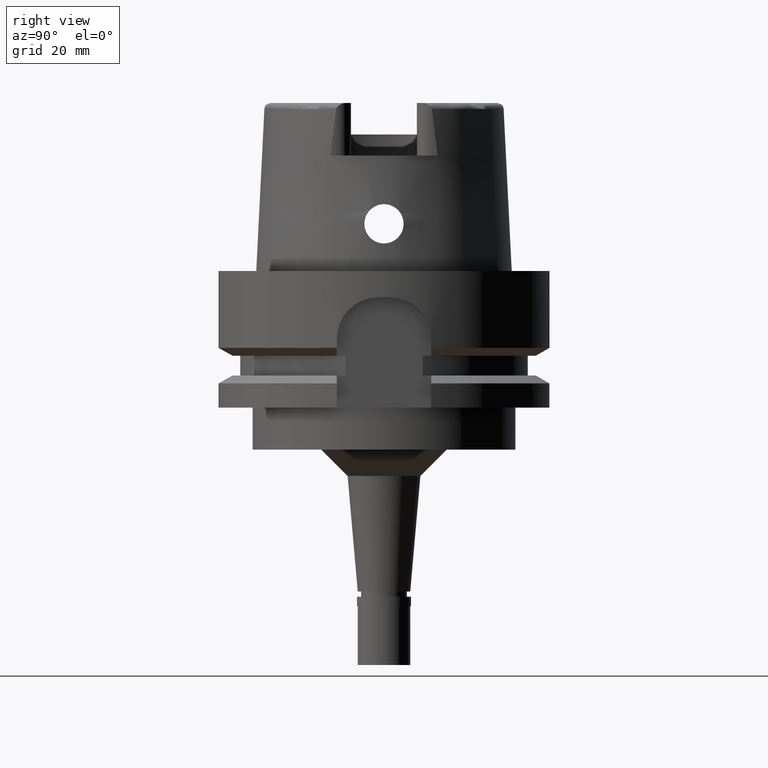
[diagram: clean part render]
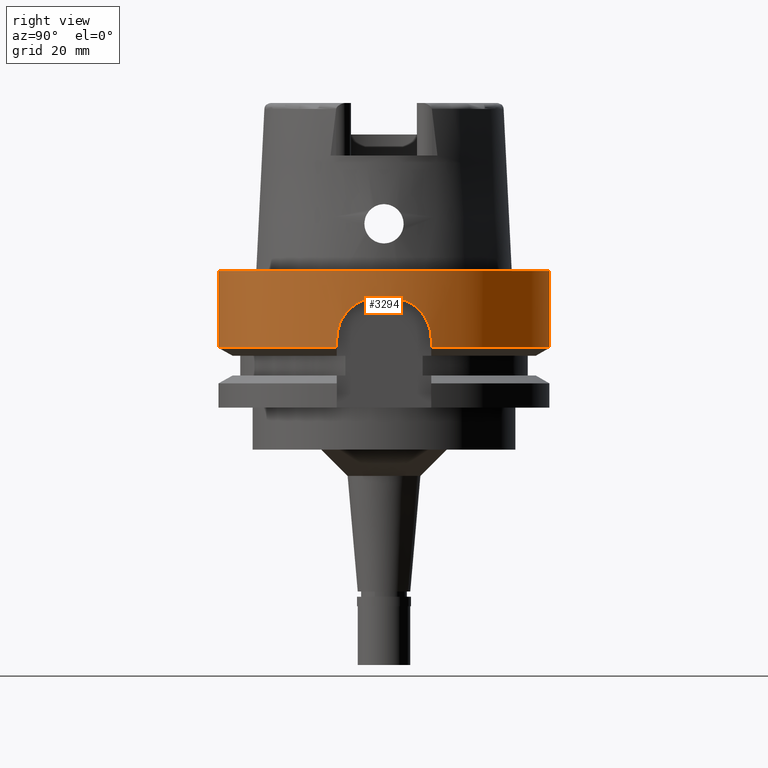
[diagram: same view with one face highlighted and labeled with its STEP entity id]
A machine part, right view. The second image highlights one B-rep face of the part: STEP entity #3294.
In plain terms, the highlighted cylindrical surface (partial cylindrical patch) has radius 31.5 mm, axis along (0, 0, -1).
Its self-contained STEP definition (entity closure, byte-faithful):
#18 = CARTESIAN_POINT ( 'NONE',  ( 30.97763310884194254, -5.714777636177593045, -6.531627579102213588 ) ) ;
#26 = VERTEX_POINT ( 'NONE', #1497 ) ;
#34 = EDGE_CURVE ( 'NONE', #2306, #26, #3304, .T. ) ;
#52 = CARTESIAN_POINT ( 'NONE',  ( 30.97106086035142880, 5.747260774509252990, -6.560049650016892109 ) ) ;
#76 = CARTESIAN_POINT ( 'NONE',  ( 30.78200704049287495, 6.687157135346112113, -7.373608385579289326 ) ) ;
#103 = CARTESIAN_POINT ( 'NONE',  ( 30.61213634656350990, 7.428749923940136668, -8.231412724895182720 ) ) ;
#134 = CARTESIAN_POINT ( 'NONE',  ( 31.02066603833974057, 5.474329072356688641, -6.368229471706310818 ) ) ;
#162 = CARTESIAN_POINT ( 'NONE',  ( 31.22918764763412369, 4.121686750512085773, -5.634169962627909811 ) ) ;
#197 = CARTESIAN_POINT ( 'NONE',  ( 30.55749398380241999, -7.647847164676893961, -8.549590074621910674 ) ) ;
#206 = EDGE_CURVE ( 'NONE', #1619, #1654, #1673, .T. ) ;
#209 = DIRECTION ( 'NONE',  ( 0.0000000000000000000, 0.0000000000000000000, -1.000000000000000000 ) ) ;
#289 = CARTESIAN_POINT ( 'NONE',  ( 30.69448692141792634, -7.081002528621201719, -7.795180697695104577 ) ) ;
#325 = EDGE_CURVE ( 'NONE', #1619, #4083, #2148, .T. ) ;
#341 = CARTESIAN_POINT ( 'NONE',  ( 31.10830744538590054, -4.953066644803116425, -6.043514509543841839 ) ) ;
#409 = ORIENTED_EDGE ( 'NONE', *, *, #485, .T. ) ;
#425 = CARTESIAN_POINT ( 'NONE',  ( 31.31585705825435539, -3.400706057007036431, -5.367532984533865736 ) ) ;
#452 = CARTESIAN_POINT ( 'NONE',  ( 31.00741827446740828, -5.550091455309537736, -6.418563727518218798 ) ) ;
#479 = CARTESIAN_POINT ( 'NONE',  ( 30.78140838282128655, 6.689911912030714447, -7.376395453845811190 ) ) ;
#485 = EDGE_CURVE ( 'NONE', #5075, #2306, #1848, .T. ) ;
#489 = AXIS2_PLACEMENT_3D ( 'NONE', #1460, #209, #3133 ) ;
#504 = CARTESIAN_POINT ( 'NONE',  ( 31.23435063214255791, 4.082333884453222872, -5.617636282296331274 ) ) ;
#518 = EDGE_CURVE ( 'NONE', #4400, #5075, #2943, .T. ) ;
#526 = DIRECTION ( 'NONE',  ( 0.0000000000000000000, 0.0000000000000000000, 1.000000000000000000 ) ) ;
#529 = CARTESIAN_POINT ( 'NONE',  ( 30.51787830698517112, 7.804718180920668047, -8.792331262665541658 ) ) ;
#552 = CARTESIAN_POINT ( 'NONE',  ( 30.35609876729461121, 8.411739697505197455, -9.988964142694317871 ) ) ;
#572 = AXIS2_PLACEMENT_3D ( 'NONE', #5359, #526, #2798 ) ;
#582 = CARTESIAN_POINT ( 'NONE',  ( 31.19830764899499087, 4.349374766136103965, -5.734631626794189252 ) ) ;
#588 = CARTESIAN_POINT ( 'NONE',  ( 30.79300844975934126, -6.636315667564042009, -7.322668735396074879 ) ) ;
#615 = CARTESIAN_POINT ( 'NONE',  ( 30.36366154914085058, -8.384389370009802889, -9.922497703909229472 ) ) ;
#727 = CARTESIAN_POINT ( 'NONE',  ( 30.18691769625000276, 9.000000000000000000, -13.00000000000000000 ) ) ;
#768 = CARTESIAN_POINT ( 'NONE',  ( 30.18691769624999921, 9.000000000000003553, -12.50993811617114382 ) ) ;
#787 = CARTESIAN_POINT ( 'NONE',  ( 31.03198899661399324, -5.409777652475012744, -6.325121157137686190 ) ) ;
#867 = B_SPLINE_CURVE_WITH_KNOTS ( 'NONE', 3,
 ( #3839, #768, #2960, #4908, #2689, #2664, #1834, #984, #1418, #3089, #2241, #552, #3573, #3114, #2635, #3143, #2718, #529, #1011, #928, #3995, #3176, #2214, #2266, #4445, #103, #4423, #5363, #1885, #905, #3630, #3971, #3949, #2292, #479, #76, #5308, #4023, #4823, #52, #2749, #5281, #1807, #4479, #4370, #5337, #4398, #134, #4880, #2319, #1859, #3603, #4048, #1446, #582, #3543, #1388, #162, #3066, #4803, #504, #1782, #4855, #3519, #5255, #957 ),
 .UNSPECIFIED., .F., .F.,
 ( 4, 2, 2, 1, 1, 1, 2, 2, 2, 2, 1, 1, 1, 1, 2, 2, 2, 2, 1, 1, 1, 1, 2, 2, 2, 2, 2, 1, 1, 1, 1, 2, 2, 2, 2, 1, 1, 1, 2, 2, 2, 4 ),
 ( 0.0000000000000000000, 0.1250000000000475175, 0.1875000000000712763, 0.2187500000000833500, 0.2343750000000894007, 0.2421875000000923706, 0.2460937500000938138, 0.2500000000000952016, 0.3125000000001235678, 0.3437500000001376121, 0.3593750000001445510, 0.3671875000001482148, 0.3710937500001499356, 0.3730468750001508793, 0.3740234375001513234, 0.3750000000001518230, 0.4375000000001639244, 0.4687500000001699196, 0.4843750000001728617, 0.4921875000001741940, 0.4960937500001748601, 0.4980468750001752487, 0.4990234375001754152, 0.5000000000001756373, 0.5625000000001917355, 0.5937500000001997291, 0.6093750000002036149, 0.6171875000002057243, 0.6210937500002067235, 0.6230468750002070566, 0.6240234375002073897, 0.6245117187502070566, 0.6250000000002068345, 0.6875000000001724176, 0.7187500000001553202, 0.7343750000001466605, 0.7421875000001423306, 0.7460937500001402212, 0.7480468750001391109, 0.7500000000001381117, 0.8750000000000690559, 1.000000000000000000 ),
 .UNSPECIFIED. ) ;
#876 = CARTESIAN_POINT ( 'NONE',  ( 30.85865826102990894, -6.323320754549815348, -7.027656642141083765 ) ) ;
#879 = CARTESIAN_POINT ( 'NONE',  ( 0.0000000000000000000, -31.50000000000000000, -14.62250092523999889 ) ) ;
#905 = CARTESIAN_POINT ( 'NONE',  ( 30.74070199618342158, 6.875140362829847973, -7.569230666642643435 ) ) ;
#928 = CARTESIAN_POINT ( 'NONE',  ( 30.54322342631781240, 7.704674039206267366, -8.635609545603465165 ) ) ;
#957 = CARTESIAN_POINT ( 'NONE',  ( 31.48412298285999711, 1.000000000000000000, -5.000000000000000000 ) ) ;
#984 = CARTESIAN_POINT ( 'NONE',  ( 30.33353712678211522, 8.493000123904753451, -10.19590533102322105 ) ) ;
#1010 = VECTOR ( 'NONE', #3288, 1000.000000000000000 ) ;
#1011 = CARTESIAN_POINT ( 'NONE',  ( 30.53467374995793193, 7.738549694288836989, -8.687905603266376175 ) ) ;
#1026 = CARTESIAN_POINT ( 'NONE',  ( 0.0000000000000000000, -31.50000000000000000, 1.894780628694000185E-14 ) ) ;
#1076 = CARTESIAN_POINT ( 'NONE',  ( 30.63637741721085206, -7.326799604757705531, -8.102164693262594142 ) ) ;
#1107 = CARTESIAN_POINT ( 'NONE',  ( 30.36230289799670956, -8.389310405891581723, -9.934321230903961464 ) ) ;
#1128 = AXIS2_PLACEMENT_3D ( 'NONE', #4594, #1586, #1973 ) ;
#1142 = CARTESIAN_POINT ( 'NONE',  ( 30.36687230965131334, -8.372751649775537430, -9.894720646851576262 ) ) ;
#1194 = CARTESIAN_POINT ( 'NONE',  ( 31.24058206343736188, -4.034358361708803464, -5.597789328618944182 ) ) ;
#1338 = ORIENTED_EDGE ( 'NONE', *, *, #5035, .F. ) ;
#1388 = CARTESIAN_POINT ( 'NONE',  ( 31.22287107269856676, 4.169376715800767741, -5.654484666988873087 ) ) ;
#1412 = VECTOR ( 'NONE', #5386, 1000.000000000000114 ) ;
#1418 = CARTESIAN_POINT ( 'NONE',  ( 30.34540340745634879, 8.450320568088402595, -10.08542724235362265 ) ) ;
#1446 = CARTESIAN_POINT ( 'NONE',  ( 31.17435895255750111, 4.518657888857705807, -5.814277882438436684 ) ) ;
#1456 = VERTEX_POINT ( 'NONE', #5356 ) ;
#1460 = CARTESIAN_POINT ( 'NONE',  ( 0.0000000000000000000, 1.679786782049999636E-14, 2.842170943039999687E-14 ) ) ;
#1486 = VECTOR ( 'NONE', #3619, 1000.000000000000000 ) ;
#1497 = CARTESIAN_POINT ( 'NONE',  ( 30.18691748910999806, -9.000000694753000019, -14.62249532151999887 ) ) ;
#1498 = B_SPLINE_CURVE_WITH_KNOTS ( 'NONE', 3,
 ( #2133, #1648, #5605, #1700, #4316, #425, #2156, #2521, #4257, #1621, #3350, #5085, #1194, #2927, #2497, #4231, #341, #5550, #2956, #5115, #4685, #787, #3835, #4341, #2184, #3917, #452, #18, #1756, #5228, #876, #3039, #3491, #4773, #2609, #5496, #588, #1954, #4180, #289, #1076, #4970, #2445, #4089, #1601, #4485, #2385, #3329, #1508, #197, #4119, #3267, #1922, #5430, #3241, #2811, #4542, #1142, #615, #1107, #5030, #4998, #2782 ),
 .UNSPECIFIED., .F., .F.,
 ( 4, 2, 2, 1, 1, 1, 1, 2, 2, 2, 2, 1, 1, 1, 1, 1, 2, 2, 2, 2, 2, 1, 1, 2, 2, 2, 2, 1, 1, 1, 1, 2, 2, 2, 2, 1, 1, 2, 2, 4 ),
 ( 0.0000000000000000000, 0.1250000000000509592, 0.1875000000000763833, 0.2187500000000890676, 0.2343750000000953404, 0.2421875000000983658, 0.2460937500000998368, 0.2480468750001005029, 0.2500000000001011968, 0.3125000000001199041, 0.3437500000001292855, 0.3593750000001340039, 0.3671875000001362799, 0.3710937500001372236, 0.3730468750001376121, 0.3740234375001377232, 0.3745117187501377787, 0.3750000000001378897, 0.4375000000001157408, 0.4687500000001046385, 0.4843750000000989764, 0.4921875000000960898, 0.4960937500000945910, 0.4980468750000939249, 0.5000000000000931477, 0.5625000000000706102, 0.5937500000000595080, 0.6093750000000542899, 0.6171875000000515143, 0.6210937500000502931, 0.6230468750000495159, 0.6240234375000490719, 0.6250000000000487388, 0.6875000000000375255, 0.7187500000000321965, 0.7343750000000298650, 0.7421875000000286438, 0.7460937500000280886, 0.7500000000000274225, 1.000000000000000000 ),
 .UNSPECIFIED. ) ;
#1508 = CARTESIAN_POINT ( 'NONE',  ( 30.55771606880398394, -7.646959450479345222, -8.548265564438160879 ) ) ;
#1560 = CARTESIAN_POINT ( 'NONE',  ( 0.0000000000000000000, 31.50000000000000000, 1.894780628694000185E-14 ) ) ;
#1573 = EDGE_CURVE ( 'NONE', #2430, #26, #1906, .T. ) ;
#1586 = DIRECTION ( 'NONE',  ( 0.0000000000000000000, 0.0000000000000000000, 1.000000000000000000 ) ) ;
#1601 = CARTESIAN_POINT ( 'NONE',  ( 30.56907325350039173, -7.601491753732292800, -8.480991841340038917 ) ) ;
#1619 = VERTEX_POINT ( 'NONE', #2855 ) ;
#1621 = CARTESIAN_POINT ( 'NONE',  ( 31.24687938001116194, -3.985291265427700846, -5.577833576225794232 ) ) ;
#1648 = CARTESIAN_POINT ( 'NONE',  ( 31.46861672679811406, -1.488200872937652131, -4.999999999999998224 ) ) ;
#1654 = VERTEX_POINT ( 'NONE', #4325 ) ;
#1673 = CIRCLE ( 'NONE', #1128, 31.49999999999999645 ) ;
#1675 = DIRECTION ( 'NONE',  ( 0.0000000000000000000, 0.0000000000000000000, 1.000000000000000000 ) ) ;
#1700 = CARTESIAN_POINT ( 'NONE',  ( 31.37939177554384429, -2.758543164314120499, -5.191344037738300443 ) ) ;
#1722 = DIRECTION ( 'NONE',  ( 0.0000000000000000000, -1.000000000000000000, 0.0000000000000000000 ) ) ;
#1756 = CARTESIAN_POINT ( 'NONE',  ( 30.91812910346694565, -6.025333896209974505, -6.773985085537381323 ) ) ;
#1771 = ORIENTED_EDGE ( 'NONE', *, *, #2354, .F. ) ;
#1782 = CARTESIAN_POINT ( 'NONE',  ( 31.30264939465103069, 3.558377190742920693, -5.399541616274085243 ) ) ;
#1807 = CARTESIAN_POINT ( 'NONE',  ( 31.00838763488280492, 5.543239699999698011, -6.415216455839025222 ) ) ;
#1834 = CARTESIAN_POINT ( 'NONE',  ( 30.31097174058196586, 8.573765026056593186, -10.41742161343747597 ) ) ;
#1848 = LINE ( 'NONE', #1026, #1486 ) ;
#1859 = CARTESIAN_POINT ( 'NONE',  ( 31.06446036319499626, 5.225982844691763773, -6.200852855431837618 ) ) ;
#1870 = CYLINDRICAL_SURFACE ( 'NONE', #2366, 31.50000000000000000 ) ;
#1885 = CARTESIAN_POINT ( 'NONE',  ( 30.72363937914970222, 6.950993357553132412, -7.652939917598708064 ) ) ;
#1906 = LINE ( 'NONE', #3651, #1412 ) ;
#1922 = CARTESIAN_POINT ( 'NONE',  ( 30.43104810176826902, -8.136971568285426670, -9.383219224674540726 ) ) ;
#1954 = CARTESIAN_POINT ( 'NONE',  ( 30.79087504920059359, -6.646208255593579750, -7.332510431551439112 ) ) ;
#1973 = DIRECTION ( 'NONE',  ( 0.9583148474999051425, 0.2857142857143015191, 0.0000000000000000000 ) ) ;
#2133 = CARTESIAN_POINT ( 'NONE',  ( 31.48412298285999711, -1.000000000000000000, -5.000000000000000000 ) ) ;
#2148 = LINE ( 'NONE', #3426, #4932 ) ;
#2156 = CARTESIAN_POINT ( 'NONE',  ( 31.29466789088050760, -3.593348569590602448, -5.429864349624763165 ) ) ;
#2184 = CARTESIAN_POINT ( 'NONE',  ( 31.02798795624133987, -5.432675544512671095, -6.340315865430054210 ) ) ;
#2214 = CARTESIAN_POINT ( 'NONE',  ( 30.55063222024377723, 7.675214942797982332, -8.590745466594981394 ) ) ;
#2241 = CARTESIAN_POINT ( 'NONE',  ( 30.35411553624175340, 8.418901403863820576, -10.00664235424735438 ) ) ;
#2266 = CARTESIAN_POINT ( 'NONE',  ( 30.55144727241819780, 7.671968214104978756, -8.585835338965004837 ) ) ;
#2292 = CARTESIAN_POINT ( 'NONE',  ( 30.77986096722303699, 6.697028787127038640, -7.383605368491197751 ) ) ;
#2306 = VERTEX_POINT ( 'NONE', #879 ) ;
#2319 = CARTESIAN_POINT ( 'NONE',  ( 31.02090811069452414, 5.472957984065747183, -6.367304303440453062 ) ) ;
#2354 = EDGE_CURVE ( 'NONE', #4083, #1456, #867, .T. ) ;
#2366 = AXIS2_PLACEMENT_3D ( 'NONE', #5349, #3161, #1722 ) ;
#2385 = CARTESIAN_POINT ( 'NONE',  ( 30.55985797895051803, -7.638396505386674917, -8.535500208826753976 ) ) ;
#2430 = VERTEX_POINT ( 'NONE', #2437 ) ;
#2437 = CARTESIAN_POINT ( 'NONE',  ( 30.18691769625000276, -9.000000000000000000, -13.00000000000000000 ) ) ;
#2445 = CARTESIAN_POINT ( 'NONE',  ( 30.59373182601860819, -7.501974381441259609, -8.338712561991165728 ) ) ;
#2497 = CARTESIAN_POINT ( 'NONE',  ( 31.18003008095062967, -4.484017143752070389, -5.793666550736797483 ) ) ;
#2521 = CARTESIAN_POINT ( 'NONE',  ( 31.26787757542919621, -3.817534775506323808, -5.512029043183238386 ) ) ;
#2586 = ORIENTED_EDGE ( 'NONE', *, *, #34, .T. ) ;
#2609 = CARTESIAN_POINT ( 'NONE',  ( 30.80217010453770499, -6.593658677551166747, -7.280561480002946340 ) ) ;
#2635 = CARTESIAN_POINT ( 'NONE',  ( 30.45983680090042967, 8.028572497886235837, -9.176854879882641924 ) ) ;
#2646 = ORIENTED_EDGE ( 'NONE', *, *, #518, .T. ) ;
#2658 = ORIENTED_EDGE ( 'NONE', *, *, #3956, .F. ) ;
#2664 = CARTESIAN_POINT ( 'NONE',  ( 30.29363085266458455, 8.635183027583369864, -10.60802022645226828 ) ) ;
#2689 = CARTESIAN_POINT ( 'NONE',  ( 30.26161690574021534, 8.747813545731371931, -10.98959365609441541 ) ) ;
#2718 = CARTESIAN_POINT ( 'NONE',  ( 30.50400320114620811, 7.858762822760323452, -8.881493206530631568 ) ) ;
#2724 = CARTESIAN_POINT ( 'NONE',  ( 31.48412298285999711, -1.000000000000000000, -5.000000000000000000 ) ) ;
#2749 = CARTESIAN_POINT ( 'NONE',  ( 30.99287102231279079, 5.628874556324932499, -6.474980330706418208 ) ) ;
#2750 = LINE ( 'NONE', #1560, #1010 ) ;
#2758 = ORIENTED_EDGE ( 'NONE', *, *, #325, .F. ) ;
#2782 = CARTESIAN_POINT ( 'NONE',  ( 30.18691769625000276, -9.000000000000000000, -13.00000000000000000 ) ) ;
#2798 = DIRECTION ( 'NONE',  ( 0.0000000000000000000, -1.000000000000000000, 0.0000000000000000000 ) ) ;
#2811 = CARTESIAN_POINT ( 'NONE',  ( 30.38338092873416940, -8.312749700983383505, -9.754962950939413346 ) ) ;
#2838 = CIRCLE ( 'NONE', #5210, 31.49999999999999289 ) ;
#2855 = CARTESIAN_POINT ( 'NONE',  ( 30.18691774052999932, 8.999999851487000768, -14.62250212309000119 ) ) ;
#2927 = CARTESIAN_POINT ( 'NONE',  ( 31.21172190527421009, -4.257593064232135127, -5.689537498470520482 ) ) ;
#2943 = CIRCLE ( 'NONE', #489, 31.50000000000000000 ) ;
#2956 = CARTESIAN_POINT ( 'NONE',  ( 31.06396769831607330, -5.223487772702392284, -6.205064867031653719 ) ) ;
#2960 = CARTESIAN_POINT ( 'NONE',  ( 30.20114611710527086, 8.954848057437004627, -12.00617963477563421 ) ) ;
#3039 = CARTESIAN_POINT ( 'NONE',  ( 30.84565212327224870, -6.386802730535542594, -7.084737456368177533 ) ) ;
#3066 = CARTESIAN_POINT ( 'NONE',  ( 31.23186169538821844, 4.101336790964290380, -5.625600766110602891 ) ) ;
#3089 = CARTESIAN_POINT ( 'NONE',  ( 30.35061401079691379, 8.431535095305585870, -10.03814683637425986 ) ) ;
#3114 = CARTESIAN_POINT ( 'NONE',  ( 30.41128288604708985, 8.211240704880314212, -9.526228653702558447 ) ) ;
#3133 = DIRECTION ( 'NONE',  ( 0.0000000000000000000, 1.000000000000000000, 0.0000000000000000000 ) ) ;
#3143 = CARTESIAN_POINT ( 'NONE',  ( 30.47694764031854220, 7.963405964178936536, -9.059203120564694345 ) ) ;
#3161 = DIRECTION ( 'NONE',  ( 0.0000000000000000000, 0.0000000000000000000, -1.000000000000000000 ) ) ;
#3176 = CARTESIAN_POINT ( 'NONE',  ( 30.54939274804075211, 7.680149427425281949, -8.598224937576219418 ) ) ;
#3237 = EDGE_LOOP ( 'NONE', ( #4597, #2658, #2646, #409, #2586, #3981, #1338, #4230, #1771, #2758 ) ) ;
#3241 = CARTESIAN_POINT ( 'NONE',  ( 30.39389350032468684, -8.274269751070173484, -9.669990427100849217 ) ) ;
#3267 = CARTESIAN_POINT ( 'NONE',  ( 30.48014070860327251, -7.951930726984402398, -9.032567008716627655 ) ) ;
#3288 = DIRECTION ( 'NONE',  ( 0.0000000000000000000, 2.721175632404000057E-14, -1.000000000000000000 ) ) ;
#3294 = ADVANCED_FACE ( 'NONE', ( #3616 ), #1870, .T. ) ;
#3304 = CIRCLE ( 'NONE', #572, 31.50000000000000000 ) ;
#3329 = CARTESIAN_POINT ( 'NONE',  ( 30.55857113979747552, -7.643541479682482986, -8.543166367383449256 ) ) ;
#3350 = CARTESIAN_POINT ( 'NONE',  ( 31.24381496217790399, -4.009224169185436004, -5.587534548796263323 ) ) ;
#3426 = CARTESIAN_POINT ( 'NONE',  ( 30.18691774052999932, 8.999999851487000768, -14.62250212309000119 ) ) ;
#3491 = CARTESIAN_POINT ( 'NONE',  ( 30.82521627557719412, -6.484828166150814255, -7.176027675010087314 ) ) ;
#3519 = CARTESIAN_POINT ( 'NONE',  ( 31.43990740102778503, 2.002766499612509410, -5.045690452851427032 ) ) ;
#3543 = CARTESIAN_POINT ( 'NONE',  ( 31.20992940212344280, 4.265570889599152871, -5.696411155635518142 ) ) ;
#3573 = CARTESIAN_POINT ( 'NONE',  ( 30.38261841401287811, 8.315908069772182998, -9.754327162401926543 ) ) ;
#3603 = CARTESIAN_POINT ( 'NONE',  ( 31.10391398703832877, 4.984596422451279985, -6.057874074360364958 ) ) ;
#3616 = FACE_OUTER_BOUND ( 'NONE', #3237, .T. ) ;
#3619 = DIRECTION ( 'NONE',  ( 0.0000000000000000000, -2.672583210395999918E-14, -1.000000000000000000 ) ) ;
#3630 = CARTESIAN_POINT ( 'NONE',  ( 30.76152530368072746, 6.780916203483976723, -7.469740641120323765 ) ) ;
#3640 = CARTESIAN_POINT ( 'NONE',  ( 0.0000000000000000000, 31.50000000000000000, 2.842170943039999687E-14 ) ) ;
#3651 = CARTESIAN_POINT ( 'NONE',  ( 30.18691769625000276, -9.000000000000000000, -13.00000000000000000 ) ) ;
#3835 = CARTESIAN_POINT ( 'NONE',  ( 31.02965729964080666, -5.423132638703100028, -6.333971617481586769 ) ) ;
#3839 = CARTESIAN_POINT ( 'NONE',  ( 30.18691769625000276, 9.000000000000000000, -13.00000000000000000 ) ) ;
#3917 = CARTESIAN_POINT ( 'NONE',  ( 31.02747474531990335, -5.435606110926731738, -6.342267685905363273 ) ) ;
#3938 = DIRECTION ( 'NONE',  ( -2.728961601390972512E-08, 9.153325887722918145E-08, 0.9999999999999954481 ) ) ;
#3949 = CARTESIAN_POINT ( 'NONE',  ( 30.77754393722280923, 6.707677379669845230, -7.394413715906278384 ) ) ;
#3956 = EDGE_CURVE ( 'NONE', #4400, #1654, #2750, .T. ) ;
#3971 = CARTESIAN_POINT ( 'NONE',  ( 30.77216618766886569, 6.732337585097694976, -7.419586730723564116 ) ) ;
#3981 = ORIENTED_EDGE ( 'NONE', *, *, #1573, .F. ) ;
#3995 = CARTESIAN_POINT ( 'NONE',  ( 30.54753625321611210, 7.687536831750154676, -8.609442937882343827 ) ) ;
#4023 = CARTESIAN_POINT ( 'NONE',  ( 30.89429077166978388, 6.148796794049101067, -6.871472152311787873 ) ) ;
#4048 = CARTESIAN_POINT ( 'NONE',  ( 31.15745290135833656, 4.633750881141974531, -5.871649223830782027 ) ) ;
#4083 = VERTEX_POINT ( 'NONE', #727 ) ;
#4089 = CARTESIAN_POINT ( 'NONE',  ( 30.58191335417635059, -7.549874250878121806, -8.406090253209598018 ) ) ;
#4119 = CARTESIAN_POINT ( 'NONE',  ( 30.51662501741218136, -7.811144113259700816, -8.793814999354857775 ) ) ;
#4180 = CARTESIAN_POINT ( 'NONE',  ( 30.73900558653630455, -6.886225106942853280, -7.572241330632924594 ) ) ;
#4230 = ORIENTED_EDGE ( 'NONE', *, *, #4964, .T. ) ;
#4231 = CARTESIAN_POINT ( 'NONE',  ( 31.12693301985354921, -4.834463125068062972, -5.977586109287258864 ) ) ;
#4257 = CARTESIAN_POINT ( 'NONE',  ( 31.25396501265809235, -3.929414185733604015, -5.555498735877000271 ) ) ;
#4316 = CARTESIAN_POINT ( 'NONE',  ( 31.35587011279428182, -3.015409690128671993, -5.253394741033296178 ) ) ;
#4325 = CARTESIAN_POINT ( 'NONE',  ( 0.0000000000000000000, 31.50000000000000000, -14.62250092523999889 ) ) ;
#4341 = CARTESIAN_POINT ( 'NONE',  ( 31.02865596505252910, -5.428858128078910106, -6.337776577109355713 ) ) ;
#4365 = VERTEX_POINT ( 'NONE', #2724 ) ;
#4370 = CARTESIAN_POINT ( 'NONE',  ( 31.01706524697072709, 5.494674946522157377, -6.381992754988901950 ) ) ;
#4398 = CARTESIAN_POINT ( 'NONE',  ( 31.02022786577336078, 5.476810874809039831, -6.369904118016843420 ) ) ;
#4400 = VERTEX_POINT ( 'NONE', #3640 ) ;
#4423 = CARTESIAN_POINT ( 'NONE',  ( 30.66990771803600424, 7.185142283015130360, -7.924462837780482438 ) ) ;
#4445 = CARTESIAN_POINT ( 'NONE',  ( 30.57921095046844329, 7.561332523935484495, -8.418750498329691467 ) ) ;
#4479 = CARTESIAN_POINT ( 'NONE',  ( 31.01259399299917874, 5.519799588948516522, -6.399093892404127182 ) ) ;
#4485 = CARTESIAN_POINT ( 'NONE',  ( 30.56289023228076118, -7.626264970551781097, -8.517491330714111797 ) ) ;
#4542 = CARTESIAN_POINT ( 'NONE',  ( 30.37173246491996892, -8.355120942544351337, -9.852969525784180505 ) ) ;
#4594 = CARTESIAN_POINT ( 'NONE',  ( 0.0000000000000000000, 1.036372656197999898E-14, -14.62250092523999889 ) ) ;
#4597 = ORIENTED_EDGE ( 'NONE', *, *, #206, .T. ) ;
#4634 = CARTESIAN_POINT ( 'NONE',  ( 0.0000000000000000000, 1.679786782049999636E-14, -5.000000000000000000 ) ) ;
#4685 = CARTESIAN_POINT ( 'NONE',  ( 31.03663338896261692, -5.383085971320904051, -6.307531101771914450 ) ) ;
#4773 = CARTESIAN_POINT ( 'NONE',  ( 30.81476669146501024, -6.534540561288297411, -7.223090249350645919 ) ) ;
#4803 = CARTESIAN_POINT ( 'NONE',  ( 31.23363704815989195, 4.087789987560689120, -5.619918229145615562 ) ) ;
#4823 = CARTESIAN_POINT ( 'NONE',  ( 30.95386222997936443, 5.839048080586405121, -6.628120043868678479 ) ) ;
#4855 = CARTESIAN_POINT ( 'NONE',  ( 31.35700020085278794, 3.035448773475076134, -5.245418817552887525 ) ) ;
#4880 = CARTESIAN_POINT ( 'NONE',  ( 31.02095685527734759, 5.472681235394293964, -6.367118005404228676 ) ) ;
#4908 = CARTESIAN_POINT ( 'NONE',  ( 30.24383137967111779, 8.809284594501638921, -11.24446710201990918 ) ) ;
#4932 = VECTOR ( 'NONE', #3938, 1000.000000000000114 ) ;
#4964 = EDGE_CURVE ( 'NONE', #4365, #1456, #2838, .T. ) ;
#4970 = CARTESIAN_POINT ( 'NONE',  ( 30.61845233138690148, -7.401004021583102777, -8.199975701904564929 ) ) ;
#4998 = CARTESIAN_POINT ( 'NONE',  ( 30.18691769625000276, -8.999999999999998224, -12.01248494606323014 ) ) ;
#5030 = CARTESIAN_POINT ( 'NONE',  ( 30.24477673187777427, -8.814620088840147361, -10.96570574566835177 ) ) ;
#5035 = EDGE_CURVE ( 'NONE', #4365, #2430, #1498, .T. ) ;
#5075 = VERTEX_POINT ( 'NONE', #5464 ) ;
#5085 = CARTESIAN_POINT ( 'NONE',  ( 31.24176585737185974, -4.025176123465950440, -5.594030543695827085 ) ) ;
#5115 = CARTESIAN_POINT ( 'NONE',  ( 31.04584616726868163, -5.329778440601013578, -6.272792448617763306 ) ) ;
#5210 = AXIS2_PLACEMENT_3D ( 'NONE', #4634, #1675, #5518 ) ;
#5228 = CARTESIAN_POINT ( 'NONE',  ( 30.89582339218580742, -6.139337515391450673, -6.866996978411032515 ) ) ;
#5255 = CARTESIAN_POINT ( 'NONE',  ( 31.46846379500103197, 1.493015796525676064, -4.999999999999998224 ) ) ;
#5281 = CARTESIAN_POINT ( 'NONE',  ( 30.99947644570045568, 5.592619690752630213, -6.449469520982501258 ) ) ;
#5308 = CARTESIAN_POINT ( 'NONE',  ( 30.84394237653884474, 6.401882291907901035, -7.085701728669532073 ) ) ;
#5337 = CARTESIAN_POINT ( 'NONE',  ( 31.01919183299875371, 5.482672020123954937, -6.373863834641694481 ) ) ;
#5349 = CARTESIAN_POINT ( 'NONE',  ( 0.0000000000000000000, 1.679786782049999636E-14, 37.16499999999999915 ) ) ;
#5356 = CARTESIAN_POINT ( 'NONE',  ( 31.48412298285999711, 1.000000000000000000, -5.000000000000000000 ) ) ;
#5359 = CARTESIAN_POINT ( 'NONE',  ( 0.0000000000000000000, 1.036372656197999898E-14, -14.62250092523999889 ) ) ;
#5363 = CARTESIAN_POINT ( 'NONE',  ( 30.69056205474848298, 7.096467398218683442, -7.817859599715585972 ) ) ;
#5386 = DIRECTION ( 'NONE',  ( -1.276650529040000178E-07, -4.282004536519000465E-07, -0.9999999999999001910 ) ) ;
#5430 = CARTESIAN_POINT ( 'NONE',  ( 30.41562287555299804, -8.194299434970417906, -9.498869852787189316 ) ) ;
#5464 = CARTESIAN_POINT ( 'NONE',  ( 0.0000000000000000000, -31.50000000000000000, 2.842170943039999687E-14 ) ) ;
#5496 = CARTESIAN_POINT ( 'NONE',  ( 30.79668469468392900, -6.619223242154055775, -7.305750730138980131 ) ) ;
#5518 = DIRECTION ( 'NONE',  ( 0.9994959677099152229, -0.03174603174603050915, 0.0000000000000000000 ) ) ;
#5550 = CARTESIAN_POINT ( 'NONE',  ( 31.07897925253150362, -5.133008860722959810, -6.149956618642401729 ) ) ;
#5605 = CARTESIAN_POINT ( 'NONE',  ( 31.44049564296133426, -1.992538567134207961, -5.044800745195907155 ) ) ;